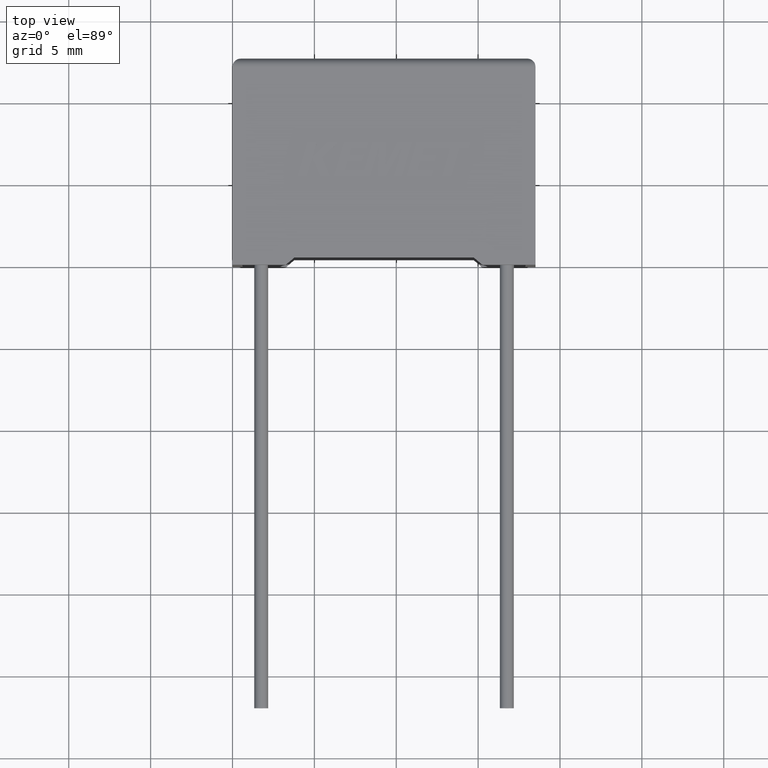
[diagram: clean part render]
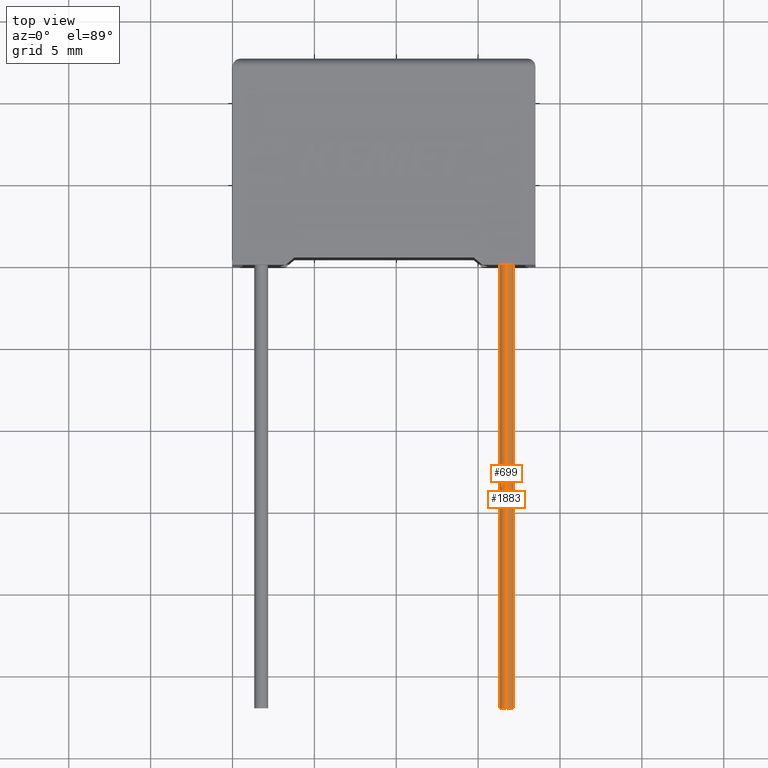
[diagram: same view with one multi-face feature highlighted, each face labeled with its STEP entity id]
A machine part, top view. The highlighted faces form ONE feature: a constant-radius fillet chain: 2 tangent blend faces with common blend radius 0.425 mm. The faces share edges in the B-rep.
Their STEP definitions:
[1] entity #1883 (Cylinder):
#2 = DIRECTION ( 'NONE',  ( -0.0000000000000000000, 1.000000000000000000, -0.0000000000000000000 ) ) ;
#69 = FACE_OUTER_BOUND ( 'NONE', #871, .T. ) ;
#135 = CARTESIAN_POINT ( 'NONE',  ( 16.75000000000000000, -27.00000000000000000, 4.174999999999999800 ) ) ;
#200 = CARTESIAN_POINT ( 'NONE',  ( 16.75000000000000000, 0.7500000000000006700, 4.174999999999999800 ) ) ;
#339 = CARTESIAN_POINT ( 'NONE',  ( 16.75000000000000000, -27.00000000000000000, 5.025000000000000400 ) ) ;
#344 = AXIS2_PLACEMENT_3D ( 'NONE', #1156, #2809, #2681 ) ;
#356 = AXIS2_PLACEMENT_3D ( 'NONE', #1829, #371, #2039 ) ;
#371 = DIRECTION ( 'NONE',  ( -0.0000000000000000000, 1.000000000000000000, -0.0000000000000000000 ) ) ;
#373 = LINE ( 'NONE', #1497, #889 ) ;
#541 = ORIENTED_EDGE ( 'NONE', *, *, #575, .T. ) ;
#575 = EDGE_CURVE ( 'NONE', #1837, #1716, #2311, .T. ) ;
#802 = VERTEX_POINT ( 'NONE', #200 ) ;
#824 = ORIENTED_EDGE ( 'NONE', *, *, #2343, .T. ) ;
#863 = ORIENTED_EDGE ( 'NONE', *, *, #1215, .T. ) ;
#871 = EDGE_LOOP ( 'NONE', ( #541, #824, #863, #1056 ) ) ;
#889 = VECTOR ( 'NONE', #1986, 1000.000000000000000 ) ;
#921 = CARTESIAN_POINT ( 'NONE',  ( 16.75000000000000000, -27.00000000000000000, 4.599999999999999600 ) ) ;
#1056 = ORIENTED_EDGE ( 'NONE', *, *, #1595, .F. ) ;
#1156 = CARTESIAN_POINT ( 'NONE',  ( 16.75000000000000000, 0.7500000000000006700, 4.599999999999999600 ) ) ;
#1215 = EDGE_CURVE ( 'NONE', #802, #2097, #2560, .T. ) ;
#1283 = CARTESIAN_POINT ( 'NONE',  ( 16.75000000000000000, 0.7500000000000006700, 5.025000000000000400 ) ) ;
#1497 = CARTESIAN_POINT ( 'NONE',  ( 16.75000000000000000, -27.00000000000000000, 4.174999999999999800 ) ) ;
#1595 = EDGE_CURVE ( 'NONE', #1837, #2097, #2520, .T. ) ;
#1646 = DIRECTION ( 'NONE',  ( 0.0000000000000000000, 0.0000000000000000000, 1.000000000000000000 ) ) ;
#1716 = VERTEX_POINT ( 'NONE', #135 ) ;
#1776 = CARTESIAN_POINT ( 'NONE',  ( 16.75000000000000000, -27.00000000000000000, 5.025000000000000400 ) ) ;
#1829 = CARTESIAN_POINT ( 'NONE',  ( 16.75000000000000000, -27.00000000000000000, 4.599999999999999600 ) ) ;
#1837 = VERTEX_POINT ( 'NONE', #339 ) ;
#1883 = ADVANCED_FACE ( 'NONE', ( #69 ), #2365, .T. ) ;
#1986 = DIRECTION ( 'NONE',  ( -0.0000000000000000000, 1.000000000000000000, -0.0000000000000000000 ) ) ;
#2024 = AXIS2_PLACEMENT_3D ( 'NONE', #921, #2, #1646 ) ;
#2039 = DIRECTION ( 'NONE',  ( 0.0000000000000000000, 0.0000000000000000000, -1.000000000000000000 ) ) ;
#2097 = VERTEX_POINT ( 'NONE', #1283 ) ;
#2311 = CIRCLE ( 'NONE', #356, 0.4250000000000000400 ) ;
#2343 = EDGE_CURVE ( 'NONE', #1716, #802, #373, .T. ) ;
#2365 = CYLINDRICAL_SURFACE ( 'NONE', #2024, 0.4250000000000000400 ) ;
#2410 = DIRECTION ( 'NONE',  ( -0.0000000000000000000, 1.000000000000000000, -0.0000000000000000000 ) ) ;
#2520 = LINE ( 'NONE', #1776, #2669 ) ;
#2560 = CIRCLE ( 'NONE', #344, 0.4250000000000000400 ) ;
#2669 = VECTOR ( 'NONE', #2410, 1000.000000000000000 ) ;
#2681 = DIRECTION ( 'NONE',  ( 0.0000000000000000000, 0.0000000000000000000, -1.000000000000000000 ) ) ;
#2809 = DIRECTION ( 'NONE',  ( 0.0000000000000000000, -1.000000000000000000, 0.0000000000000000000 ) ) ;
[2] entity #699 (Cylinder):
#135 = CARTESIAN_POINT ( 'NONE',  ( 16.75000000000000000, -27.00000000000000000, 4.174999999999999800 ) ) ;
#200 = CARTESIAN_POINT ( 'NONE',  ( 16.75000000000000000, 0.7500000000000006700, 4.174999999999999800 ) ) ;
#309 = AXIS2_PLACEMENT_3D ( 'NONE', #1577, #2522, #2751 ) ;
#339 = CARTESIAN_POINT ( 'NONE',  ( 16.75000000000000000, -27.00000000000000000, 5.025000000000000400 ) ) ;
#362 = CARTESIAN_POINT ( 'NONE',  ( 16.75000000000000000, -27.00000000000000000, 4.599999999999999600 ) ) ;
#373 = LINE ( 'NONE', #1497, #889 ) ;
#382 = DIRECTION ( 'NONE',  ( -0.0000000000000000000, 1.000000000000000000, -0.0000000000000000000 ) ) ;
#663 = CYLINDRICAL_SURFACE ( 'NONE', #722, 0.4250000000000000400 ) ;
#699 = ADVANCED_FACE ( 'NONE', ( #2928 ), #663, .T. ) ;
#722 = AXIS2_PLACEMENT_3D ( 'NONE', #2786, #2796, #1369 ) ;
#758 = AXIS2_PLACEMENT_3D ( 'NONE', #362, #382, #845 ) ;
#802 = VERTEX_POINT ( 'NONE', #200 ) ;
#845 = DIRECTION ( 'NONE',  ( 0.0000000000000000000, 0.0000000000000000000, -1.000000000000000000 ) ) ;
#889 = VECTOR ( 'NONE', #1986, 1000.000000000000000 ) ;
#1249 = EDGE_CURVE ( 'NONE', #1716, #1837, #1681, .T. ) ;
#1283 = CARTESIAN_POINT ( 'NONE',  ( 16.75000000000000000, 0.7500000000000006700, 5.025000000000000400 ) ) ;
#1367 = EDGE_LOOP ( 'NONE', ( #1840, #2198, #2981, #2636 ) ) ;
#1369 = DIRECTION ( 'NONE',  ( 0.0000000000000000000, 0.0000000000000000000, 1.000000000000000000 ) ) ;
#1497 = CARTESIAN_POINT ( 'NONE',  ( 16.75000000000000000, -27.00000000000000000, 4.174999999999999800 ) ) ;
#1577 = CARTESIAN_POINT ( 'NONE',  ( 16.75000000000000000, 0.7500000000000006700, 4.599999999999999600 ) ) ;
#1595 = EDGE_CURVE ( 'NONE', #1837, #2097, #2520, .T. ) ;
#1681 = CIRCLE ( 'NONE', #758, 0.4250000000000000400 ) ;
#1716 = VERTEX_POINT ( 'NONE', #135 ) ;
#1776 = CARTESIAN_POINT ( 'NONE',  ( 16.75000000000000000, -27.00000000000000000, 5.025000000000000400 ) ) ;
#1837 = VERTEX_POINT ( 'NONE', #339 ) ;
#1840 = ORIENTED_EDGE ( 'NONE', *, *, #2343, .F. ) ;
#1986 = DIRECTION ( 'NONE',  ( -0.0000000000000000000, 1.000000000000000000, -0.0000000000000000000 ) ) ;
#2097 = VERTEX_POINT ( 'NONE', #1283 ) ;
#2140 = EDGE_CURVE ( 'NONE', #2097, #802, #2827, .T. ) ;
#2198 = ORIENTED_EDGE ( 'NONE', *, *, #1249, .T. ) ;
#2343 = EDGE_CURVE ( 'NONE', #1716, #802, #373, .T. ) ;
#2410 = DIRECTION ( 'NONE',  ( -0.0000000000000000000, 1.000000000000000000, -0.0000000000000000000 ) ) ;
#2520 = LINE ( 'NONE', #1776, #2669 ) ;
#2522 = DIRECTION ( 'NONE',  ( 0.0000000000000000000, -1.000000000000000000, 0.0000000000000000000 ) ) ;
#2636 = ORIENTED_EDGE ( 'NONE', *, *, #2140, .T. ) ;
#2669 = VECTOR ( 'NONE', #2410, 1000.000000000000000 ) ;
#2751 = DIRECTION ( 'NONE',  ( 0.0000000000000000000, 0.0000000000000000000, -1.000000000000000000 ) ) ;
#2786 = CARTESIAN_POINT ( 'NONE',  ( 16.75000000000000000, -27.00000000000000000, 4.599999999999999600 ) ) ;
#2796 = DIRECTION ( 'NONE',  ( -0.0000000000000000000, 1.000000000000000000, -0.0000000000000000000 ) ) ;
#2827 = CIRCLE ( 'NONE', #309, 0.4250000000000000400 ) ;
#2928 = FACE_OUTER_BOUND ( 'NONE', #1367, .T. ) ;
#2981 = ORIENTED_EDGE ( 'NONE', *, *, #1595, .T. ) ;